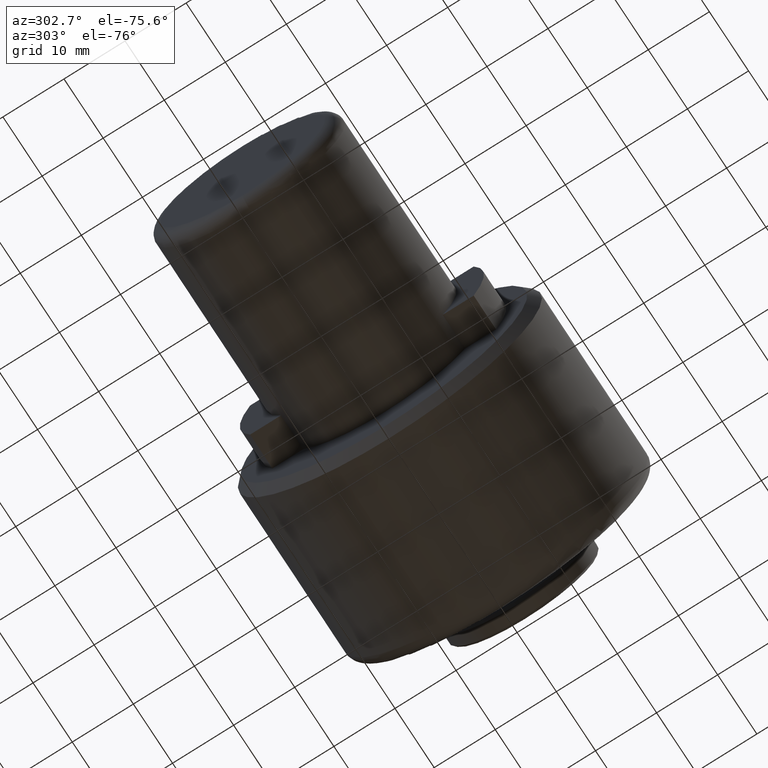
[diagram: clean part render]
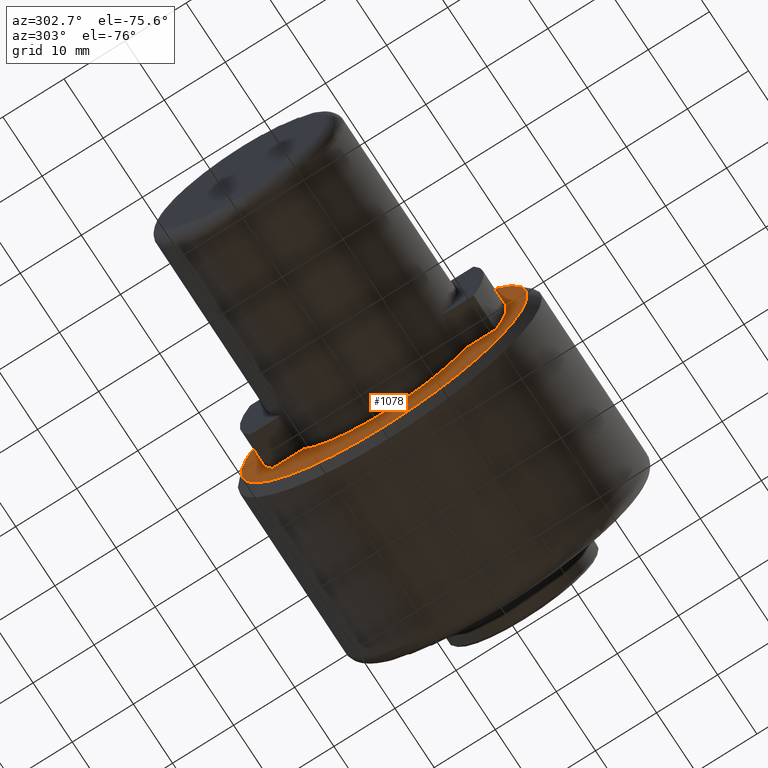
[diagram: same view with one face highlighted and labeled with its STEP entity id]
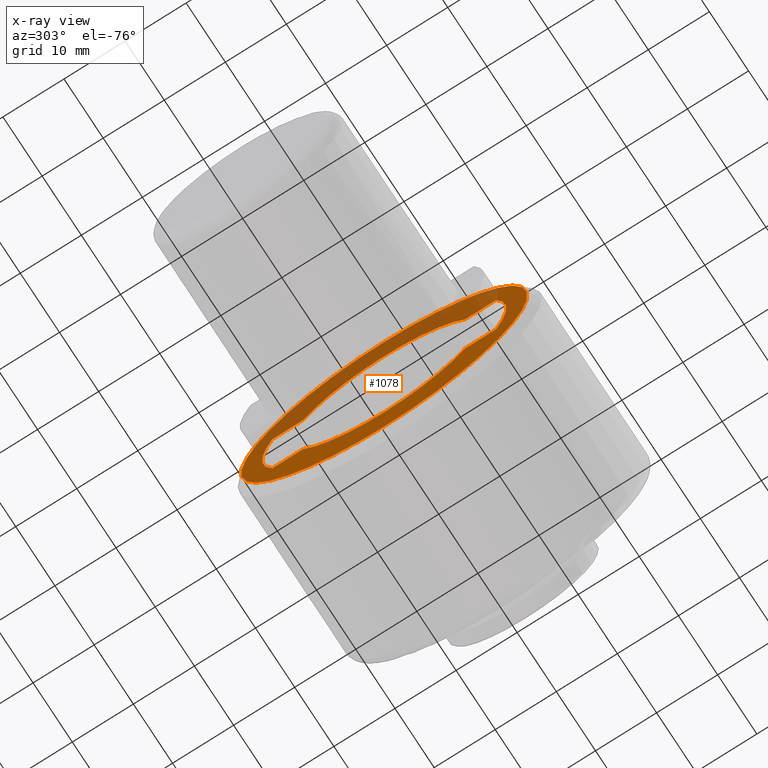
[diagram: x-ray of the same camera — body ghosted, the highlighted face saturated]
A machine part, auxiliary view. The second image highlights one B-rep face of the part: STEP entity #1078.
The next image is the same camera in x-ray: the body ghosted, the highlighted face saturated — about 43% of this face is hidden behind the body in this view.
In plain terms, the highlighted planar face has unit normal (-1, 0, 0).
Its self-contained STEP definition (entity closure, byte-faithful):
#1 = CIRCLE ( 'NONE', #90, 23.45000000000002100 ) ;
#5 = EDGE_CURVE ( 'NONE', #207, #596, #852, .T. ) ;
#18 = CARTESIAN_POINT ( 'NONE',  ( 36.10000000000002300, 0.0000000000000000000, -23.45000000000002100 ) ) ;
#20 = VERTEX_POINT ( 'NONE', #1157 ) ;
#41 = DIRECTION ( 'NONE',  ( 1.000000000000000000, -0.0000000000000000000, -0.0000000000000000000 ) ) ;
#43 = EDGE_CURVE ( 'NONE', #748, #541, #259, .T. ) ;
#70 = EDGE_CURVE ( 'NONE', #20, #1014, #1377, .T. ) ;
#79 = DIRECTION ( 'NONE',  ( 0.0000000000000000000, 1.000000000000000000, 0.0000000000000000000 ) ) ;
#81 = CARTESIAN_POINT ( 'NONE',  ( 36.10000000000000100, 1.898202538678397600E-015, -15.50000000000000000 ) ) ;
#90 = AXIS2_PLACEMENT_3D ( 'NONE', #1171, #511, #1288 ) ;
#99 = VERTEX_POINT ( 'NONE', #562 ) ;
#127 = VERTEX_POINT ( 'NONE', #418 ) ;
#162 = AXIS2_PLACEMENT_3D ( 'NONE', #841, #168, #958 ) ;
#168 = DIRECTION ( 'NONE',  ( 1.000000000000000000, -0.0000000000000000000, -0.0000000000000000000 ) ) ;
#183 = CARTESIAN_POINT ( 'NONE',  ( 36.10000000000002300, 0.0000000000000000000, 0.0000000000000000000 ) ) ;
#207 = VERTEX_POINT ( 'NONE', #396 ) ;
#259 = LINE ( 'NONE', #1089, #1110 ) ;
#270 = CIRCLE ( 'NONE', #162, 15.50000000000000000 ) ;
#305 = DIRECTION ( 'NONE',  ( 0.0000000000000000000, 0.0000000000000000000, -1.000000000000000000 ) ) ;
#309 = DIRECTION ( 'NONE',  ( 0.0000000000000000000, 0.0000000000000000000, 1.000000000000000000 ) ) ;
#322 = ORIENTED_EDGE ( 'NONE', *, *, #1327, .T. ) ;
#331 = ORIENTED_EDGE ( 'NONE', *, *, #5, .T. ) ;
#339 = EDGE_CURVE ( 'NONE', #1248, #99, #1, .T. ) ;
#361 = EDGE_CURVE ( 'NONE', #541, #538, #270, .T. ) ;
#372 = VERTEX_POINT ( 'NONE', #728 ) ;
#384 = CIRCLE ( 'NONE', #832, 20.00000000000000000 ) ;
#396 = CARTESIAN_POINT ( 'NONE',  ( 36.10000000000000100, 18.30839971065709500, 8.050000002608204100 ) ) ;
#417 = ORIENTED_EDGE ( 'NONE', *, *, #1225, .T. ) ;
#418 = CARTESIAN_POINT ( 'NONE',  ( 36.10000000000000100, 13.24565966429947900, -8.050000003574520900 ) ) ;
#419 = CIRCLE ( 'NONE', #616, 15.50000000000000000 ) ;
#449 = DIRECTION ( 'NONE',  ( 0.0000000000000000000, 1.000000000000000000, 0.0000000000000000000 ) ) ;
#462 = EDGE_CURVE ( 'NONE', #127, #679, #1283, .T. ) ;
#463 = VECTOR ( 'NONE', #79, 1000.000000000000000 ) ;
#483 = DIRECTION ( 'NONE',  ( 1.000000000000000000, -0.0000000000000000000, -0.0000000000000000000 ) ) ;
#490 = CARTESIAN_POINT ( 'NONE',  ( 36.10000000000000100, 0.0000000000000000000, 8.050000005216407600 ) ) ;
#503 = CIRCLE ( 'NONE', #595, 20.00000000000000000 ) ;
#511 = DIRECTION ( 'NONE',  ( -1.000000000000000000, -0.0000000000000000000, -0.0000000000000000000 ) ) ;
#514 = ORIENTED_EDGE ( 'NONE', *, *, #339, .T. ) ;
#517 = CARTESIAN_POINT ( 'NONE',  ( 36.10000000000000100, 0.0000000000000000000, 0.0000000000000000000 ) ) ;
#538 = VERTEX_POINT ( 'NONE', #81 ) ;
#541 = VERTEX_POINT ( 'NONE', #1312 ) ;
#548 = CARTESIAN_POINT ( 'NONE',  ( 36.10000000000000100, -23.73140000000000100, -23.73140000000000100 ) ) ;
#561 = VECTOR ( 'NONE', #1343, 1000.000000000000000 ) ;
#562 = CARTESIAN_POINT ( 'NONE',  ( 36.10000000000002300, 2.960583636938727300E-015, 23.45000000000002100 ) ) ;
#582 = ORIENTED_EDGE ( 'NONE', *, *, #462, .T. ) ;
#591 = CARTESIAN_POINT ( 'NONE',  ( 36.10000000000000100, 0.0000000000000000000, 0.0000000000000000000 ) ) ;
#592 = FACE_OUTER_BOUND ( 'NONE', #839, .T. ) ;
#595 = AXIS2_PLACEMENT_3D ( 'NONE', #517, #1292, #629 ) ;
#596 = VERTEX_POINT ( 'NONE', #661 ) ;
#600 = DIRECTION ( 'NONE',  ( -0.0000000000000000000, -1.000000000000000000, -0.0000000000000000000 ) ) ;
#603 = EDGE_CURVE ( 'NONE', #1014, #372, #1134, .T. ) ;
#616 = AXIS2_PLACEMENT_3D ( 'NONE', #591, #1366, #702 ) ;
#628 = ORIENTED_EDGE ( 'NONE', *, *, #70, .T. ) ;
#629 = DIRECTION ( 'NONE',  ( 0.0000000000000000000, 0.0000000000000000000, 1.000000000000000000 ) ) ;
#661 = CARTESIAN_POINT ( 'NONE',  ( 36.10000000000000100, 13.24565966595055700, 8.050000000857798100 ) ) ;
#664 = PLANE ( 'NONE',  #714 ) ;
#679 = VERTEX_POINT ( 'NONE', #1161 ) ;
#680 = CIRCLE ( 'NONE', #688, 15.50000000000000000 ) ;
#688 = AXIS2_PLACEMENT_3D ( 'NONE', #1140, #483, #1263 ) ;
#702 = DIRECTION ( 'NONE',  ( 0.0000000000000000000, -1.776356839400250500E-015, 1.000000000000000000 ) ) ;
#709 = CARTESIAN_POINT ( 'NONE',  ( 36.10000000000000100, 0.0000000000000000000, 0.0000000000000000000 ) ) ;
#714 = AXIS2_PLACEMENT_3D ( 'NONE', #548, #1438, #768 ) ;
#728 = CARTESIAN_POINT ( 'NONE',  ( 36.10000000000000100, -18.30839971065709500, 8.050000002608204100 ) ) ;
#748 = VERTEX_POINT ( 'NONE', #956 ) ;
#768 = DIRECTION ( 'NONE',  ( 0.0000000000000000000, 0.0000000000000000000, 1.000000000000000000 ) ) ;
#769 = EDGE_CURVE ( 'NONE', #372, #748, #503, .T. ) ;
#817 = DIRECTION ( 'NONE',  ( 0.0000000000000000000, 0.0000000000000000000, 1.000000000000000000 ) ) ;
#832 = AXIS2_PLACEMENT_3D ( 'NONE', #709, #41, #817 ) ;
#839 = EDGE_LOOP ( 'NONE', ( #514, #1090 ) ) ;
#841 = CARTESIAN_POINT ( 'NONE',  ( 36.10000000000000100, 0.0000000000000000000, 0.0000000000000000000 ) ) ;
#843 = VECTOR ( 'NONE', #600, 1000.000000000000000 ) ;
#847 = EDGE_CURVE ( 'NONE', #99, #1248, #1054, .T. ) ;
#852 = LINE ( 'NONE', #1450, #561 ) ;
#873 = ORIENTED_EDGE ( 'NONE', *, *, #361, .T. ) ;
#956 = CARTESIAN_POINT ( 'NONE',  ( 36.10000000000000100, -18.30839971065709900, -8.050000002608200600 ) ) ;
#958 = DIRECTION ( 'NONE',  ( 0.0000000000000000000, 0.0000000000000000000, 1.000000000000000000 ) ) ;
#970 = DIRECTION ( 'NONE',  ( -1.000000000000000000, -0.0000000000000000000, -0.0000000000000000000 ) ) ;
#1014 = VERTEX_POINT ( 'NONE', #1092 ) ;
#1054 = CIRCLE ( 'NONE', #1109, 23.45000000000002100 ) ;
#1078 = ADVANCED_FACE ( 'NONE', ( #1442, #592 ), #664, .T. ) ;
#1089 = CARTESIAN_POINT ( 'NONE',  ( 36.10000000000000100, 0.0000000000000000000, -8.050000005216396900 ) ) ;
#1090 = ORIENTED_EDGE ( 'NONE', *, *, #847, .T. ) ;
#1092 = CARTESIAN_POINT ( 'NONE',  ( 36.10000000000000100, -13.24565966667339200, 8.049999999668429500 ) ) ;
#1109 = AXIS2_PLACEMENT_3D ( 'NONE', #183, #970, #305 ) ;
#1110 = VECTOR ( 'NONE', #449, 1000.000000000000000 ) ;
#1134 = LINE ( 'NONE', #490, #843 ) ;
#1140 = CARTESIAN_POINT ( 'NONE',  ( 36.10000000000000100, 0.0000000000000000000, 0.0000000000000000000 ) ) ;
#1157 = CARTESIAN_POINT ( 'NONE',  ( 36.10000000000000100, 0.0000000000000000000, 15.50000000000000000 ) ) ;
#1161 = CARTESIAN_POINT ( 'NONE',  ( 36.10000000000000100, 18.30839971065709900, -8.050000002608200600 ) ) ;
#1171 = CARTESIAN_POINT ( 'NONE',  ( 36.10000000000002300, 0.0000000000000000000, 0.0000000000000000000 ) ) ;
#1180 = AXIS2_PLACEMENT_3D ( 'NONE', #1326, #1421, #309 ) ;
#1204 = EDGE_LOOP ( 'NONE', ( #873, #417, #582, #322, #331, #1393, #628, #1234, #1358, #1368 ) ) ;
#1225 = EDGE_CURVE ( 'NONE', #538, #127, #419, .T. ) ;
#1234 = ORIENTED_EDGE ( 'NONE', *, *, #603, .T. ) ;
#1248 = VERTEX_POINT ( 'NONE', #18 ) ;
#1263 = DIRECTION ( 'NONE',  ( 0.0000000000000000000, 0.0000000000000000000, 1.000000000000000000 ) ) ;
#1282 = EDGE_CURVE ( 'NONE', #596, #20, #680, .T. ) ;
#1283 = LINE ( 'NONE', #1416, #463 ) ;
#1288 = DIRECTION ( 'NONE',  ( 0.0000000000000000000, 0.0000000000000000000, -1.000000000000000000 ) ) ;
#1292 = DIRECTION ( 'NONE',  ( 1.000000000000000000, -0.0000000000000000000, -0.0000000000000000000 ) ) ;
#1312 = CARTESIAN_POINT ( 'NONE',  ( 36.10000000000000100, -13.24565966357664100, -8.050000004763893100 ) ) ;
#1326 = CARTESIAN_POINT ( 'NONE',  ( 36.10000000000000100, 0.0000000000000000000, 0.0000000000000000000 ) ) ;
#1327 = EDGE_CURVE ( 'NONE', #679, #207, #384, .T. ) ;
#1343 = DIRECTION ( 'NONE',  ( -0.0000000000000000000, -1.000000000000000000, -0.0000000000000000000 ) ) ;
#1358 = ORIENTED_EDGE ( 'NONE', *, *, #769, .T. ) ;
#1366 = DIRECTION ( 'NONE',  ( 1.000000000000000000, -0.0000000000000000000, -0.0000000000000000000 ) ) ;
#1368 = ORIENTED_EDGE ( 'NONE', *, *, #43, .T. ) ;
#1377 = CIRCLE ( 'NONE', #1180, 15.50000000000000000 ) ;
#1393 = ORIENTED_EDGE ( 'NONE', *, *, #1282, .T. ) ;
#1416 = CARTESIAN_POINT ( 'NONE',  ( 36.10000000000000100, 0.0000000000000000000, -8.050000005216396900 ) ) ;
#1421 = DIRECTION ( 'NONE',  ( 1.000000000000000000, -0.0000000000000000000, -0.0000000000000000000 ) ) ;
#1438 = DIRECTION ( 'NONE',  ( -1.000000000000000000, 0.0000000000000000000, 0.0000000000000000000 ) ) ;
#1442 = FACE_BOUND ( 'NONE', #1204, .T. ) ;
#1450 = CARTESIAN_POINT ( 'NONE',  ( 36.10000000000000100, 0.0000000000000000000, 8.050000005216407600 ) ) ;